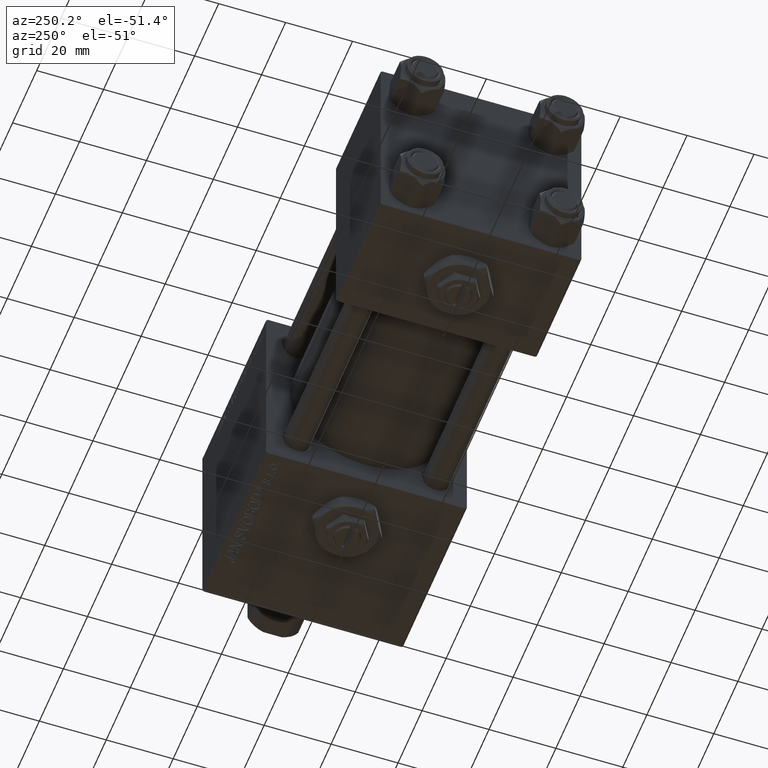
[diagram: clean part render]
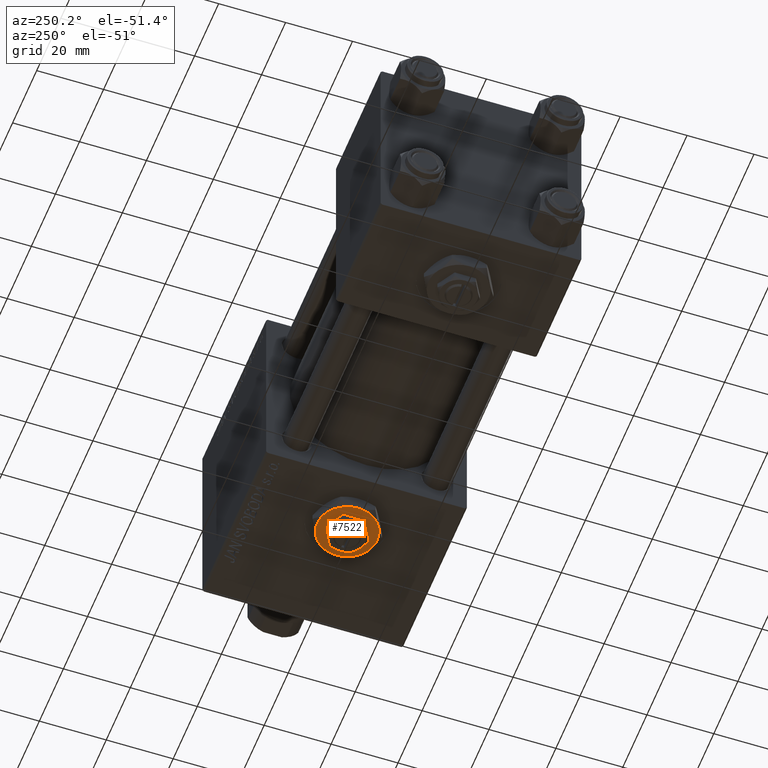
[diagram: same view with one face highlighted and labeled with its STEP entity id]
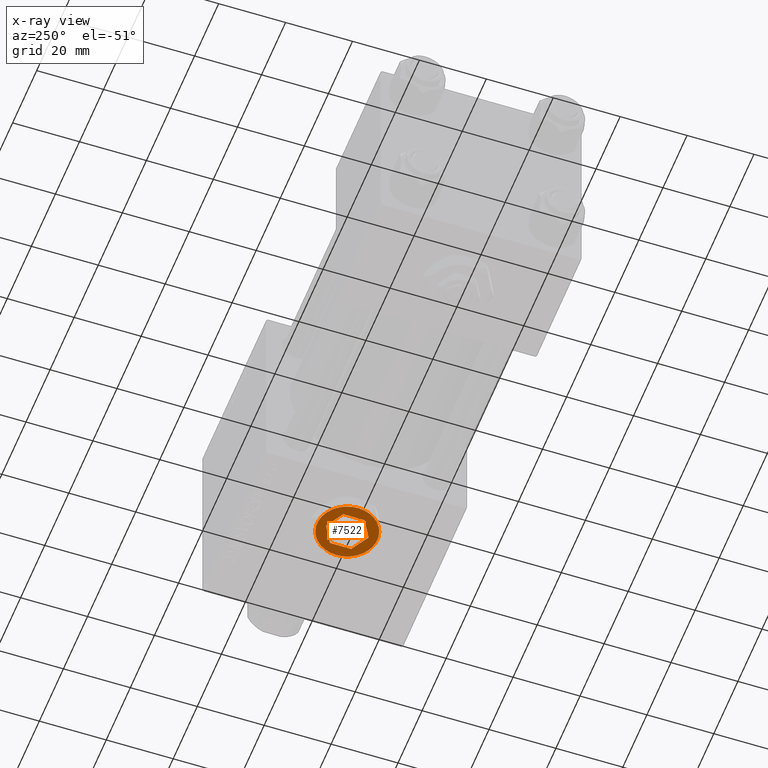
[diagram: x-ray of the same camera — body ghosted, the highlighted face saturated]
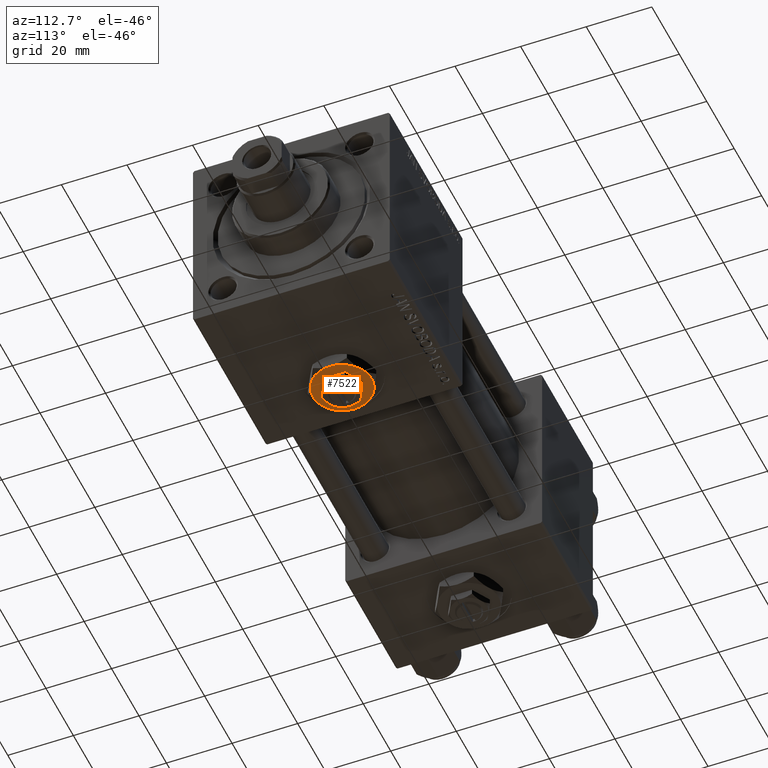
[diagram: same view with one face highlighted and labeled with its STEP entity id]
A machine part, auxiliary view. The second image highlights one B-rep face of the part: STEP entity #7522.
The next image is the same camera in x-ray: the body ghosted, the highlighted face saturated — about 0% of this face is hidden behind the body in this view.
A second angle (auxiliary view) of the same face is appended — the face is thin or edge-on in the first view.
In plain terms, the highlighted planar face has unit normal (0, 0, -1).
Its self-contained STEP definition (entity closure, byte-faithful):
#1468 = EDGE_CURVE ( 'NONE', #44441, #38973, #34097, .T. ) ;
#1469 = CARTESIAN_POINT ( 'NONE',  ( 0.000000000000000000, 0.000000000000000000, 4.299999999999999822 ) ) ;
#1715 = EDGE_LOOP ( 'NONE', ( #44618, #10852, #43850, #22595, #40140, #26257 ) ) ;
#1807 = VERTEX_POINT ( 'NONE', #26637 ) ;
#1993 = FACE_BOUND ( 'NONE', #18658, .T. ) ;
#2495 = CARTESIAN_POINT ( 'NONE',  ( -5.500000000000000000, 3.175426480542941743, 4.299999999999999822 ) ) ;
#2747 = LINE ( 'NONE', #26547, #43127 ) ;
#3675 = CIRCLE ( 'NONE', #31511, 9.000000000000000000 ) ;
#5286 = LINE ( 'NONE', #50471, #35478 ) ;
#5672 = LINE ( 'NONE', #17824, #42273 ) ;
#5897 = EDGE_CURVE ( 'NONE', #49659, #44441, #44666, .T. ) ;
#6739 = VERTEX_POINT ( 'NONE', #50089 ) ;
#7522 = ADVANCED_FACE ( 'NONE', ( #38713, #1993 ), #41643, .T. ) ;
#8341 = EDGE_CURVE ( 'NONE', #32941, #31457, #43786, .T. ) ;
#8475 = CARTESIAN_POINT ( 'NONE',  ( 5.500000000000000888, -3.175426480542940855, 4.299999999999999822 ) ) ;
#8939 = DIRECTION ( 'NONE',  ( 1.000000000000000000, 0.000000000000000000, 0.000000000000000000 ) ) ;
#10331 = DIRECTION ( 'NONE',  ( 0.000000000000000000, 0.000000000000000000, 1.000000000000000000 ) ) ;
#10845 = DIRECTION ( 'NONE',  ( 0.000000000000000000, 0.000000000000000000, 1.000000000000000000 ) ) ;
#10852 = ORIENTED_EDGE ( 'NONE', *, *, #14046, .T. ) ;
#10871 = DIRECTION ( 'NONE',  ( 1.000000000000000000, 0.000000000000000000, 0.000000000000000000 ) ) ;
#11676 = DIRECTION ( 'NONE',  ( 1.000000000000000000, 0.000000000000000000, 0.000000000000000000 ) ) ;
#11725 = AXIS2_PLACEMENT_3D ( 'NONE', #46524, #10331, #34631 ) ;
#13328 = DIRECTION ( 'NONE',  ( 0.000000000000000000, 0.000000000000000000, 1.000000000000000000 ) ) ;
#13341 = VECTOR ( 'NONE', #45202, 1000.000000000000000 ) ;
#13615 = EDGE_CURVE ( 'NONE', #23440, #34491, #26130, .T. ) ;
#14046 = EDGE_CURVE ( 'NONE', #37221, #23440, #26993, .T. ) ;
#14125 = DIRECTION ( 'NONE',  ( 0.000000000000000000, -1.000000000000000000, 0.000000000000000000 ) ) ;
#14833 = DIRECTION ( 'NONE',  ( 0.000000000000000000, 0.000000000000000000, 1.000000000000000000 ) ) ;
#15300 = DIRECTION ( 'NONE',  ( 0.000000000000000000, 0.000000000000000000, 1.000000000000000000 ) ) ;
#16313 = AXIS2_PLACEMENT_3D ( 'NONE', #49541, #13328, #29460 ) ;
#16612 = EDGE_CURVE ( 'NONE', #38973, #37544, #5286, .T. ) ;
#17282 = EDGE_CURVE ( 'NONE', #24369, #1807, #5672, .T. ) ;
#17824 = CARTESIAN_POINT ( 'NONE',  ( -5.500000000000000000, -3.175426480542942187, 4.299999999999999822 ) ) ;
#18272 = CARTESIAN_POINT ( 'NONE',  ( 0.000000000000000000, 0.000000000000000000, 4.299999999999999822 ) ) ;
#18658 = EDGE_LOOP ( 'NONE', ( #37944, #41005, #42390, #50854, #25472, #29758 ) ) ;
#19168 = CARTESIAN_POINT ( 'NONE',  ( -5.500000000000000000, 3.175426480542941743, 4.299999999999999822 ) ) ;
#20799 = EDGE_CURVE ( 'NONE', #37544, #24369, #46365, .T. ) ;
#21074 = AXIS2_PLACEMENT_3D ( 'NONE', #18272, #14833, #10871 ) ;
#21298 = VECTOR ( 'NONE', #14125, 1000.000000000000000 ) ;
#22595 = ORIENTED_EDGE ( 'NONE', *, *, #49273, .T. ) ;
#23440 = VERTEX_POINT ( 'NONE', #36123 ) ;
#24369 = VERTEX_POINT ( 'NONE', #43547 ) ;
#24515 = CARTESIAN_POINT ( 'NONE',  ( -4.499999999999998224, -7.794228634059947147, 4.299999999999999822 ) ) ;
#25472 = ORIENTED_EDGE ( 'NONE', *, *, #17282, .F. ) ;
#25743 = EDGE_CURVE ( 'NONE', #31457, #37221, #39098, .T. ) ;
#26130 = CIRCLE ( 'NONE', #21074, 9.000000000000000000 ) ;
#26257 = ORIENTED_EDGE ( 'NONE', *, *, #8341, .T. ) ;
#26435 = CARTESIAN_POINT ( 'NONE',  ( 5.499999999999999112, 3.175426480542943075, 4.299999999999999822 ) ) ;
#26547 = CARTESIAN_POINT ( 'NONE',  ( -1.343581385738006573E-15, -6.350852961085881709, 4.299999999999999822 ) ) ;
#26637 = CARTESIAN_POINT ( 'NONE',  ( -1.343581385738006573E-15, -6.350852961085881709, 4.299999999999999822 ) ) ;
#26887 = AXIS2_PLACEMENT_3D ( 'NONE', #1469, #50099, #30014 ) ;
#26993 = CIRCLE ( 'NONE', #49793, 9.000000000000000000 ) ;
#27943 = CARTESIAN_POINT ( 'NONE',  ( 4.499999999999997335, -7.794228634059948035, 4.299999999999999822 ) ) ;
#29460 = DIRECTION ( 'NONE',  ( 1.000000000000000000, 0.000000000000000000, 0.000000000000000000 ) ) ;
#29758 = ORIENTED_EDGE ( 'NONE', *, *, #20799, .F. ) ;
#30014 = DIRECTION ( 'NONE',  ( 1.000000000000000000, 0.000000000000000000, -0.000000000000000000 ) ) ;
#31457 = VERTEX_POINT ( 'NONE', #27943 ) ;
#31511 = AXIS2_PLACEMENT_3D ( 'NONE', #39952, #47882, #11676 ) ;
#31708 = CARTESIAN_POINT ( 'NONE',  ( 5.500000000000000888, -3.175426480542940855, 4.299999999999999822 ) ) ;
#31731 = CARTESIAN_POINT ( 'NONE',  ( 0.000000000000000000, 6.350852961085883486, 4.299999999999999822 ) ) ;
#32941 = VERTEX_POINT ( 'NONE', #24515 ) ;
#33272 = VECTOR ( 'NONE', #38057, 1000.000000000000000 ) ;
#33947 = DIRECTION ( 'NONE',  ( 0.8660254037844387076, -0.4999999999999998890, 0.000000000000000000 ) ) ;
#34097 = LINE ( 'NONE', #26435, #33272 ) ;
#34307 = CARTESIAN_POINT ( 'NONE',  ( 5.499999999999999112, 3.175426480542943075, 4.299999999999999822 ) ) ;
#34404 = CARTESIAN_POINT ( 'NONE',  ( -4.500000000000000000, 7.794228634059947147, 4.299999999999999822 ) ) ;
#34491 = VERTEX_POINT ( 'NONE', #34404 ) ;
#34631 = DIRECTION ( 'NONE',  ( 1.000000000000000000, 0.000000000000000000, 0.000000000000000000 ) ) ;
#35478 = VECTOR ( 'NONE', #38313, 1000.000000000000114 ) ;
#36123 = CARTESIAN_POINT ( 'NONE',  ( 4.500000000000000000, 7.794228634059947147, 4.299999999999999822 ) ) ;
#36638 = CIRCLE ( 'NONE', #51822, 9.000000000000000000 ) ;
#37221 = VERTEX_POINT ( 'NONE', #39501 ) ;
#37544 = VERTEX_POINT ( 'NONE', #19168 ) ;
#37944 = ORIENTED_EDGE ( 'NONE', *, *, #16612, .F. ) ;
#38057 = DIRECTION ( 'NONE',  ( -0.8660254037844387076, 0.4999999999999999445, 0.000000000000000000 ) ) ;
#38313 = DIRECTION ( 'NONE',  ( -0.8660254037844385966, -0.4999999999999999445, 0.000000000000000000 ) ) ;
#38713 = FACE_OUTER_BOUND ( 'NONE', #1715, .T. ) ;
#38973 = VERTEX_POINT ( 'NONE', #31731 ) ;
#39098 = CIRCLE ( 'NONE', #16313, 9.000000000000000000 ) ;
#39501 = CARTESIAN_POINT ( 'NONE',  ( 8.999999999999998224, 0.000000000000000000, 4.299999999999999822 ) ) ;
#39641 = DIRECTION ( 'NONE',  ( 1.000000000000000000, 0.000000000000000000, 0.000000000000000000 ) ) ;
#39684 = EDGE_CURVE ( 'NONE', #1807, #49659, #2747, .T. ) ;
#39952 = CARTESIAN_POINT ( 'NONE',  ( 0.000000000000000000, 0.000000000000000000, 4.299999999999999822 ) ) ;
#40140 = ORIENTED_EDGE ( 'NONE', *, *, #50881, .T. ) ;
#40384 = CARTESIAN_POINT ( 'NONE',  ( 0.000000000000000000, 0.000000000000000000, 4.299999999999999822 ) ) ;
#41005 = ORIENTED_EDGE ( 'NONE', *, *, #1468, .F. ) ;
#41643 = PLANE ( 'NONE',  #26887 ) ;
#42273 = VECTOR ( 'NONE', #33947, 1000.000000000000000 ) ;
#42390 = ORIENTED_EDGE ( 'NONE', *, *, #5897, .F. ) ;
#42657 = DIRECTION ( 'NONE',  ( 0.8660254037844388186, 0.4999999999999997224, 0.000000000000000000 ) ) ;
#43127 = VECTOR ( 'NONE', #42657, 1000.000000000000000 ) ;
#43547 = CARTESIAN_POINT ( 'NONE',  ( -5.500000000000000000, -3.175426480542942187, 4.299999999999999822 ) ) ;
#43786 = CIRCLE ( 'NONE', #11725, 9.000000000000000000 ) ;
#43850 = ORIENTED_EDGE ( 'NONE', *, *, #13615, .T. ) ;
#44441 = VERTEX_POINT ( 'NONE', #34307 ) ;
#44618 = ORIENTED_EDGE ( 'NONE', *, *, #25743, .T. ) ;
#44666 = LINE ( 'NONE', #8475, #13341 ) ;
#45202 = DIRECTION ( 'NONE',  ( -2.731481088613017227E-16, 1.000000000000000000, 0.000000000000000000 ) ) ;
#46365 = LINE ( 'NONE', #2495, #21298 ) ;
#46524 = CARTESIAN_POINT ( 'NONE',  ( 0.000000000000000000, 0.000000000000000000, 4.299999999999999822 ) ) ;
#47575 = CARTESIAN_POINT ( 'NONE',  ( 0.000000000000000000, 0.000000000000000000, 4.299999999999999822 ) ) ;
#47882 = DIRECTION ( 'NONE',  ( 0.000000000000000000, 0.000000000000000000, 1.000000000000000000 ) ) ;
#49273 = EDGE_CURVE ( 'NONE', #34491, #6739, #3675, .T. ) ;
#49541 = CARTESIAN_POINT ( 'NONE',  ( 0.000000000000000000, 0.000000000000000000, 4.299999999999999822 ) ) ;
#49659 = VERTEX_POINT ( 'NONE', #31708 ) ;
#49793 = AXIS2_PLACEMENT_3D ( 'NONE', #40384, #15300, #8939 ) ;
#50089 = CARTESIAN_POINT ( 'NONE',  ( -9.000000000000000000, 0.000000000000000000, 4.299999999999999822 ) ) ;
#50099 = DIRECTION ( 'NONE',  ( 0.000000000000000000, 0.000000000000000000, 1.000000000000000000 ) ) ;
#50471 = CARTESIAN_POINT ( 'NONE',  ( 0.000000000000000000, 6.350852961085883486, 4.299999999999999822 ) ) ;
#50854 = ORIENTED_EDGE ( 'NONE', *, *, #39684, .F. ) ;
#50881 = EDGE_CURVE ( 'NONE', #6739, #32941, #36638, .T. ) ;
#51822 = AXIS2_PLACEMENT_3D ( 'NONE', #47575, #10845, #39641 ) ;